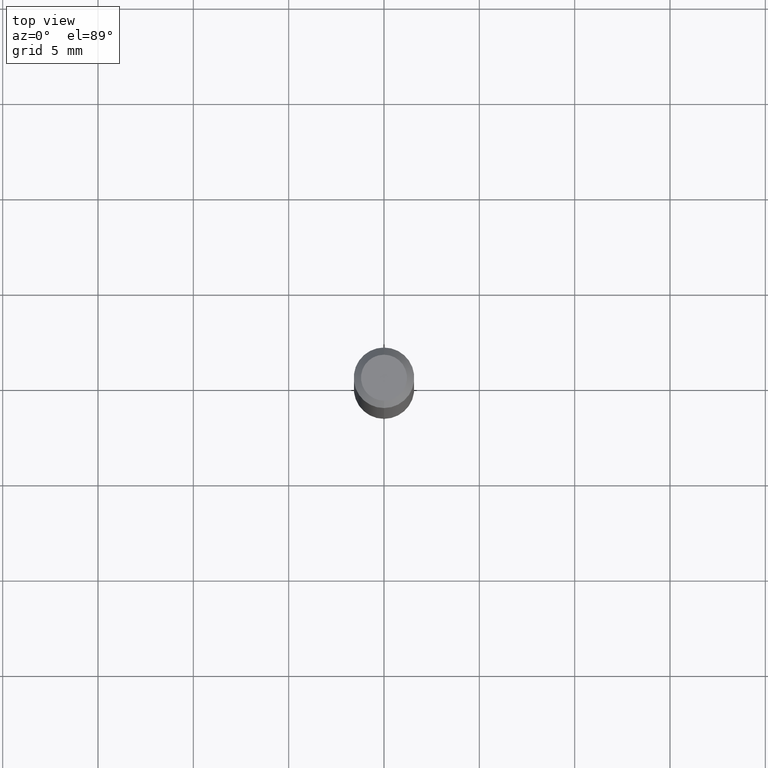
[diagram: clean part render]
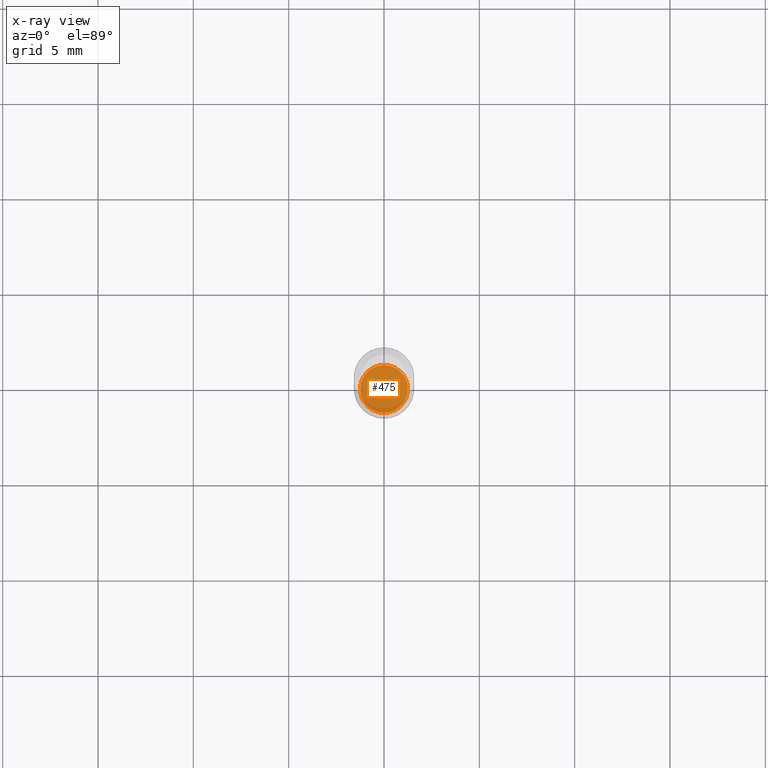
[diagram: x-ray — body ghosted, one internal face saturated and labeled with its STEP entity id]
A machine part, top view, then the same camera in x-ray: the body is ghosted and one INTERNAL B-rep face — a face not visible from any outside direction — is saturated and labeled: STEP entity #475.
In plain terms, the highlighted planar face has unit normal (-0, 0, 1).
Its self-contained STEP definition (entity closure, byte-faithful):
#20 = ORIENTED_EDGE ( 'NONE', *, *, #40, .F. ) ;
#40 = EDGE_CURVE ( 'NONE', #463, #311, #496, .T. ) ;
#47 = DIRECTION ( 'NONE',  ( -6.982962677686265922E-15, -1.000000000000000000, 5.518884835685379881E-15 ) ) ;
#61 = ORIENTED_EDGE ( 'NONE', *, *, #415, .F. ) ;
#155 = PLANE ( 'NONE',  #473 ) ;
#184 = EDGE_LOOP ( 'NONE', ( #20, #61 ) ) ;
#247 = DIRECTION ( 'NONE',  ( -6.982962677686265922E-15, -1.000000000000000000, 5.518884835685379881E-15 ) ) ;
#279 = CARTESIAN_POINT ( 'NONE',  ( 3.301211179136828164E-29, -4.713745704804496317E-15, -1.350000000000000089 ) ) ;
#282 = DIRECTION ( 'NONE',  ( -2.445341614175428300E-29, 3.491663485040367379E-15, 1.000000000000000000 ) ) ;
#295 = DIRECTION ( 'NONE',  ( -6.982962677686265922E-15, -1.000000000000000000, 3.491663485040367379E-15 ) ) ;
#297 = CARTESIAN_POINT ( 'NONE',  ( 3.301211179136828164E-29, -4.713745704804496317E-15, -1.350000000000000089 ) ) ;
#304 = CARTESIAN_POINT ( 'NONE',  ( -3.456566525454371962E-16, -0.04950000000000471384, -1.349999999999999867 ) ) ;
#311 = VERTEX_POINT ( 'NONE', #469 ) ;
#312 = AXIS2_PLACEMENT_3D ( 'NONE', #297, #446, #47 ) ;
#375 = AXIS2_PLACEMENT_3D ( 'NONE', #279, #282, #247 ) ;
#415 = EDGE_CURVE ( 'NONE', #311, #463, #426, .T. ) ;
#426 = CIRCLE ( 'NONE', #312, 0.04950000000000000233 ) ;
#430 = CARTESIAN_POINT ( 'NONE',  ( 3.301211179136828164E-29, -4.713745704804496317E-15, -1.350000000000000089 ) ) ;
#446 = DIRECTION ( 'NONE',  ( -2.445341614175428300E-29, 3.491663485040367379E-15, 1.000000000000000000 ) ) ;
#463 = VERTEX_POINT ( 'NONE', #304 ) ;
#468 = DIRECTION ( 'NONE',  ( -2.445341614175428020E-29, 3.491663485040367379E-15, 1.000000000000000000 ) ) ;
#469 = CARTESIAN_POINT ( 'NONE',  ( 3.534950110406825490E-16, 0.04949999999999529082, -1.350000000000000311 ) ) ;
#473 = AXIS2_PLACEMENT_3D ( 'NONE', #430, #468, #295 ) ;
#475 = ADVANCED_FACE ( 'NONE', ( #499 ), #155, .F. ) ;
#496 = CIRCLE ( 'NONE', #375, 0.04950000000000000233 ) ;
#499 = FACE_OUTER_BOUND ( 'NONE', #184, .T. ) ;